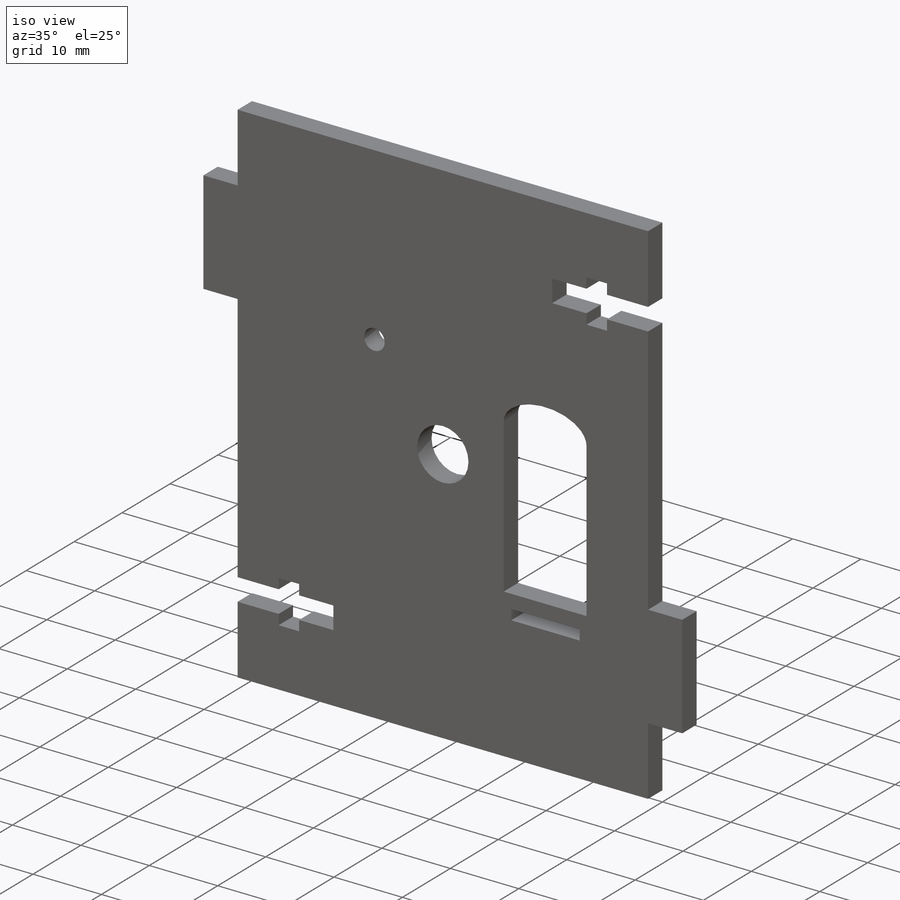
[diagram: iso view]
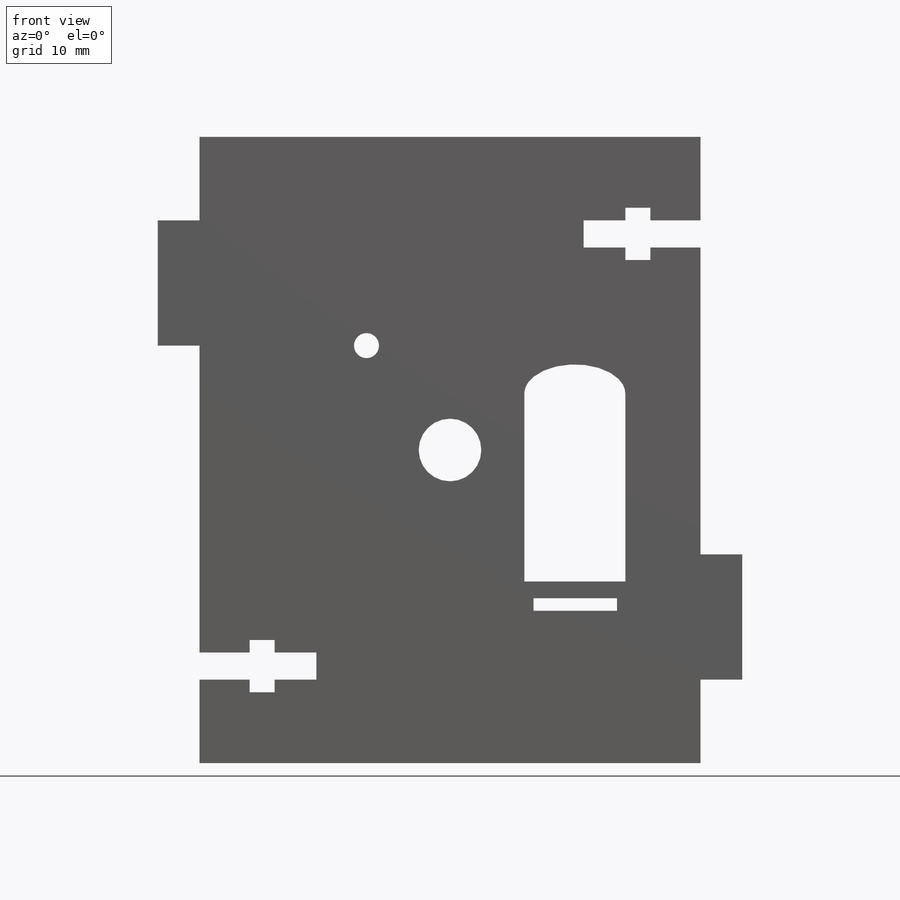
[diagram: front view]
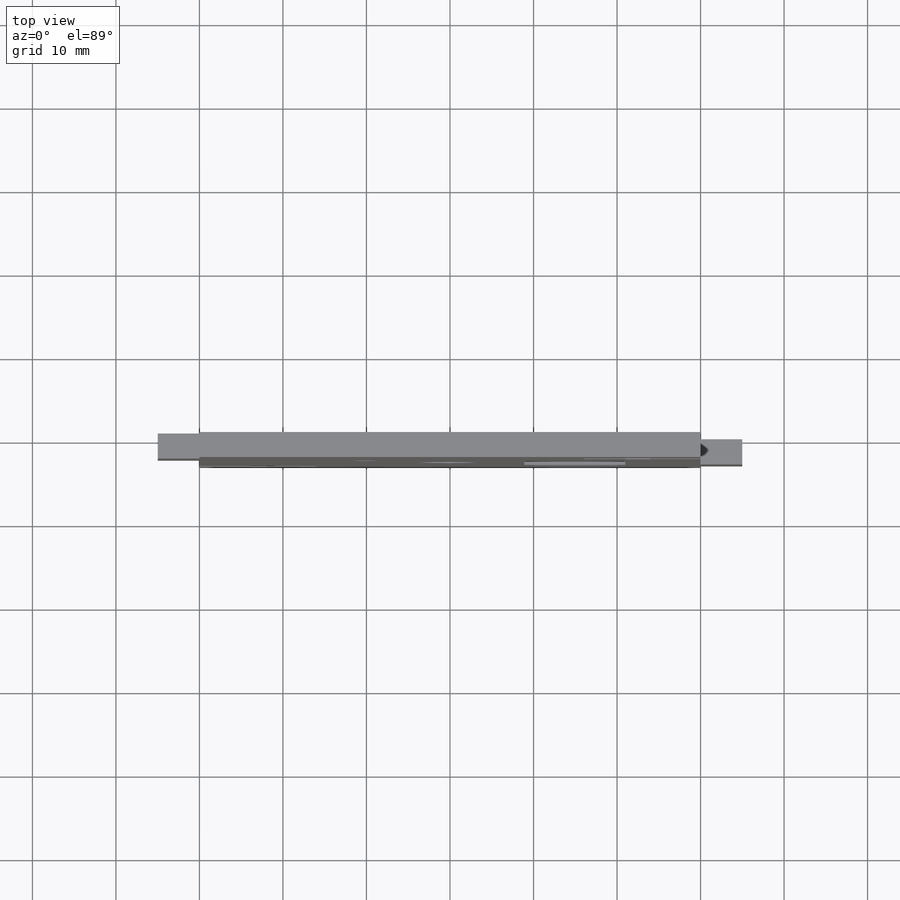
[diagram: top view]
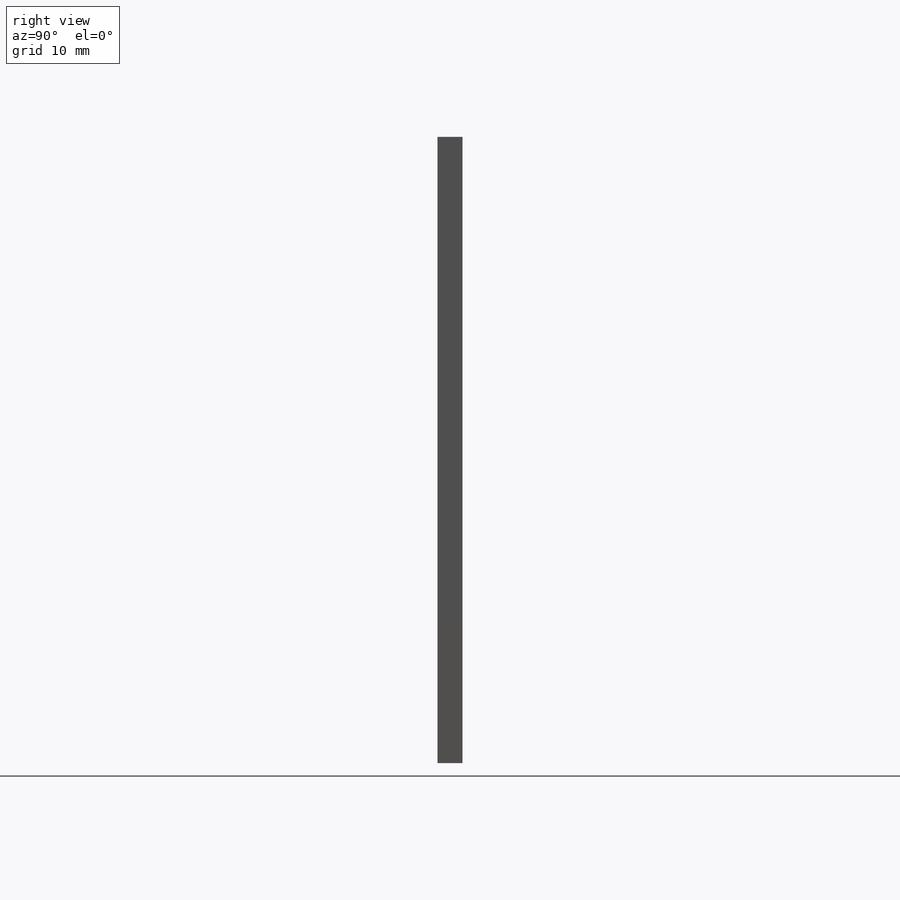
[diagram: right view]
SOLIDWORKS PART (.sldprt)
format: sldprt  version: not decoded by parser v0  size: 487,424 bytes
history: native  units: mm
features: extrude x56, sketch x2, fillet x2, material x1 (+13 scaffold rows collapsed)
feature tree (74):
  scaffold x13  (default folders/planes/origin — collapsed)
  material  "Matériau <non spécifié>"
  sketch  "Esquisse1"  dims[c1.D1=~4.13282mm c1.D28=7.5mm c1.D21=~5.091304mm c1.D27=3.0mm c2.D1=30.0mm c2.D2=60.0mm c2.D3=60.0mm c2.D4=30.0mm c2.D5=60.0mm c2.D6=0.0mm c2.D7=5.0mm c2.D8=5.0mm c2.D9=5.0mm c2.D10=0.0mm c2.D11=75.0mm c2.D12=15.0mm c2.D13=15.0mm c2.D14=15.0mm c2.D15=15.0mm c2.D16=25.0mm c2.D17=25.0mm c2.D18=10.0mm c2.D19=37.5mm c2.D20=8.9mm c2.D21=6.75mm c2.D22=15.75mm c2.D23=12.1mm c2.D24=1.5mm c2.D25=1.5mm c2.D26=2.0mm c2.D27=2.0mm c2.D29=10.0mm c2.D30=10.0mm c2.D31=10.0mm c2.D32=10.0mm c3.D6=3.25mm c3.D12=14.0mm c3.D33=6.25mm c3.D34=1.5mm c3.D35=10.0mm c3.D36=~2.445726mm c4.D36=90.0deg c5.D36=1.5mm c5.D37=3.25mm c5.D9=9.0mm c5.D14=6.0mm c5.D38=6.0mm c5.D39=9.0mm c5.D40=14.0mm c5.D41=3.25mm c5.D42=10.0mm c5.D43=6.0mm c5.D44=6.0mm c5.D45=9.0mm c5.D46=9.0mm c5.D47=6.25mm c5.D48=1.5mm c5.D49=3.25mm c5.D50=10.0mm c5.D51=9.0mm c5.D21=3.5mm c5.D24=10.0mm]
  extrude  "Boss.-Extru.1"  Depth=3mm flange_len_value=0
  extrude  "Associativity_IDs"  Depth=0 flange_len_value=0 7b5b9a7a-6b5a-4703-a7f1-16a8fcbd6f68=0deg
  extrude  "Associativity_IDs"  Depth=0 flange_len_value=0 176a5910-1771-4c9f-bdb7-0e19523b7314=0deg
  extrude  "Associativity_IDs"  Depth=0 flange_len_value=0 55f2f1b8-48ba-4533-9585-3583c4a4a523=0deg
  extrude  "Associativity_IDs"  Depth=0 flange_len_value=0 6b9459d0-39da-449c-b8d6-8250549f467c=0deg
  extrude  "Associativity_IDs"  Depth=0 flange_len_value=0 fed3911d-3253-4aab-8e42-eb9aa4f0500e=0deg
  extrude  "Associativity_IDs"  Depth=0 flange_len_value=0 01c1dcc7-ad16-482e-922e-9b7322365338=0deg
  extrude  "Associativity_IDs"  Depth=0 flange_len_value=0 c0a57a2e-e67a-474e-be09-1750633cbec8=0deg
  extrude  "Associativity_IDs"  Depth=0 flange_len_value=0 5ee7a49e-76cc-4686-a07e-c5c970472c83=0deg
  extrude  "Associativity_IDs"  Depth=0 flange_len_value=0 424bbb98-513e-4afb-809f-5b97ef7dc834=0deg
  extrude  "Associativity_IDs"  Depth=0 flange_len_value=0 6af14341-d8f8-42b1-90c5-f51fed845649=0deg
  extrude  "Associativity_IDs"  Depth=0 flange_len_value=0 8a6961dd-2b75-46e2-8b27-dae5db3de140=0deg
  extrude  "Associativity_IDs"  Depth=0 flange_len_value=0 b28be8aa-971a-4bee-976d-b8c9f1a67758=0deg
  extrude  "Associativity_IDs"  Depth=0 flange_len_value=0 2dca65f9-27e3-49fb-a927-ab3328c16b11=0deg
  extrude  "Associativity_IDs"  Depth=0 flange_len_value=0 204c4c6c-fd91-4d4f-8a97-49ae31bec871=0deg
  extrude  "Associativity_IDs"  Depth=0 flange_len_value=0 2a793f01-6a3d-411a-91e1-808c2c61d737=0deg
  extrude  "Associativity_IDs"  Depth=0 flange_len_value=0 70981b76-4107-4e1c-90ae-482650940e71=0deg
  extrude  "Associativity_IDs"  Depth=0 flange_len_value=0 c7cd9464-bcc7-44d2-8a59-1f72992e1938=0deg
  extrude  "Associativity_IDs"  Depth=0 flange_len_value=0 3f2323d7-4697-49b9-afc7-286c4a2e2445=0deg
  extrude  "Associativity_IDs"  Depth=0 flange_len_value=0 1b8ce68f-559c-4b60-aa33-7342e44fd3df=0deg
  extrude  "Associativity_IDs"  Depth=0 flange_len_value=0 3d762841-fca2-4f8c-9de0-4f15220ab875=0deg
  extrude  "Associativity_IDs"  Depth=0 flange_len_value=0 5ffb295a-90f8-4586-a5b3-b48994a75ebe=0deg
  extrude  "Associativity_IDs"  Depth=0 flange_len_value=0 4c897013-619a-465b-bdb0-0c5ad73f6ad2=0deg
  extrude  "Associativity_IDs"  Depth=0 flange_len_value=0 65e86ee3-15f1-4278-8d54-6dab3d384a50=0deg
  extrude  "Associativity_IDs"  Depth=0 flange_len_value=0 e4d73b62-8ddd-40b5-a7c5-45ccc09780f9=0deg
  extrude  "Associativity_IDs"  Depth=0 flange_len_value=0 d9c75ca3-5b77-41a7-b336-2fea266672ea=0deg
  extrude  "Associativity_IDs"  Depth=0 flange_len_value=0 da13cb5e-b4ae-469e-99fe-e822a64a8c32=0deg
  extrude  "Associativity_IDs"  Depth=0 flange_len_value=0 0aa9e9df-0192-493c-a74c-72bfc40c6bdf=0deg
  extrude  "Associativity_IDs"  Depth=0 flange_len_value=0 22c9b65e-c120-4a23-94a8-c2b33b7a8d1f=0deg
  extrude  "Associativity_IDs"  Depth=0 flange_len_value=0 38e9e832-f6c9-4baa-89aa-d808d56dc3e3=0deg
  extrude  "Associativity_IDs"  Depth=0 flange_len_value=0 4fcbd7b1-123a-47de-9e97-8567ec107c34=0deg
  extrude  "Associativity_IDs"  Depth=0 flange_len_value=0 5eb759f6-996f-4e99-a1dd-77f5c8365c23=0deg
  extrude  "Associativity_IDs"  Depth=0 flange_len_value=0 b0e11f2b-9f79-4e2d-87f7-63db912a61e0=0deg
  extrude  "Associativity_IDs"  Depth=0 flange_len_value=0 6b3ca976-8031-4464-94c3-d1e12c11ee86=0deg
  extrude  "Associativity_IDs"  Depth=0 flange_len_value=0 4e993720-89ae-4998-8d76-750d54e56dcb=0deg
  extrude  "Associativity_IDs"  Depth=0 flange_len_value=0 7fe8b40e-4bf1-4667-a522-04a6adb00757=0deg
  extrude  "Associativity_IDs"  Depth=0 flange_len_value=0 8d4b0540-1911-4ecc-8082-78400e28c590=0deg
  extrude  "Associativity_IDs"  Depth=0 flange_len_value=0 d6a30cbb-8318-42c5-9714-65bcc424146e=0deg
  extrude  "Associativity_IDs"  Depth=0 flange_len_value=0 81577c91-152f-478b-b7d0-f029ac91c841=0deg
  extrude  "Associativity_IDs"  Depth=0 flange_len_value=0 a0b2d769-3a5d-4f06-9b37-85e8f09ae4b4=0deg
  extrude  "Associativity_IDs"  Depth=0 flange_len_value=0 5f413a28-40a2-45ad-a3ec-3f047b5ba547=0deg
  extrude  "Associativity_IDs"  Depth=0 flange_len_value=0 2ac5d8b6-85fc-4829-b017-9141e2f98708=0deg
  extrude  "Associativity_IDs"  Depth=0 flange_len_value=0 9e3fb473-5a04-46e8-a456-a490d0ac1727=0deg
  extrude  "Associativity_IDs"  Depth=0 flange_len_value=0 75b4db01-bc70-4fe2-91fb-96717001b548=0deg
  extrude  "Associativity_IDs"  Depth=0 flange_len_value=0 c8617c1f-8a71-4117-8c00-82342d8b5fcc=0deg
  extrude  "Associativity_IDs"  Depth=0 flange_len_value=0 13622363-12a9-4fdd-92fb-69167adbf8cb=0deg
  extrude  "Associativity_IDs"  Depth=0 flange_len_value=0 325566df-48b1-41a7-8958-64f025d704cd=0deg
  extrude  "Associativity_IDs"  Depth=0 flange_len_value=0 a950ccc2-66d2-42b4-a198-d3d337793003=0deg
  extrude  "Associativity_IDs"  Depth=0 flange_len_value=0 6171f407-7809-4fab-8fc7-64ace0d4dbc0=0deg
  extrude  "Associativity_IDs"  Depth=0 flange_len_value=0 3e2d44bb-0998-4234-a36e-5b05816350a1=0deg
  extrude  "Associativity_IDs"  Depth=0 flange_len_value=0 78089c76-0987-42d5-a211-5c73491ba3e0=0deg
  extrude  "Associativity_IDs"  Depth=0 flange_len_value=0 b4449fc3-c962-484d-8073-631604675616=0deg
  extrude  "Associativity_IDs"  Depth=0 flange_len_value=0 3a9de56f-edab-4618-853d-8edfcb2c7e81=0deg
  extrude  "Associativity_IDs"  Depth=0 flange_len_value=0 a778f70b-7c71-4833-b151-8150f8be4ca0=0deg
  extrude  "Associativity_IDs"  Depth=0 flange_len_value=0 a8ad569c-5792-4e13-84ff-fe69e7781099=0deg
  extrude  "Associativity_IDs"  Depth=0 flange_len_value=0
  sketch  "Esquisse2"  dims[D1=~4.148148mm]
  fillet  "Congé3"  Radius=1mm
  fillet  "Congé4"  Radius=1mm
decode coverage: 60 of 60 modeling features carry decoded parameters
note: ~ marks probable driven/reference dimensions
note: suppression state not decoded; provenance and decode notes live in map.json
